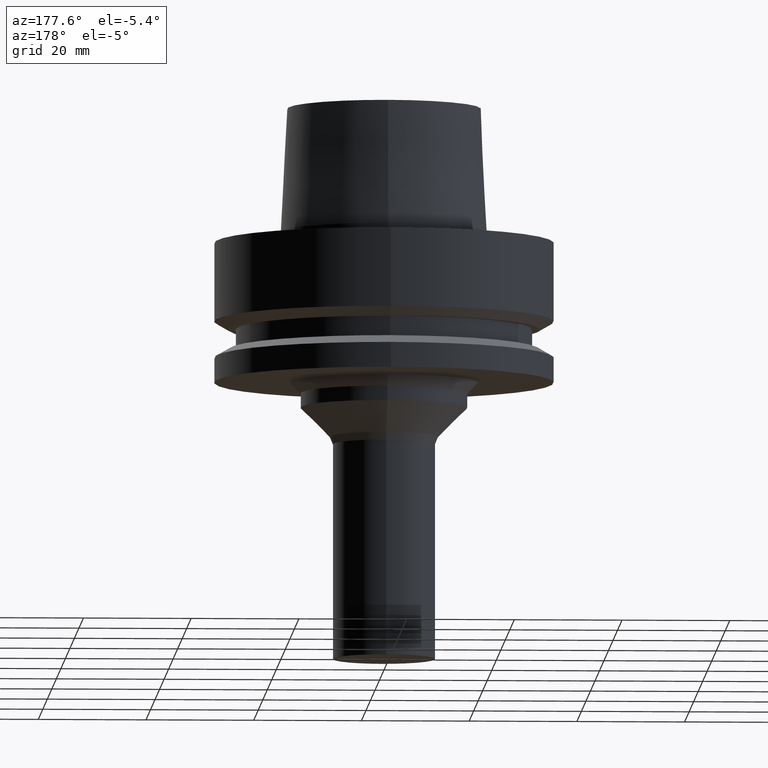
[diagram: clean part render]
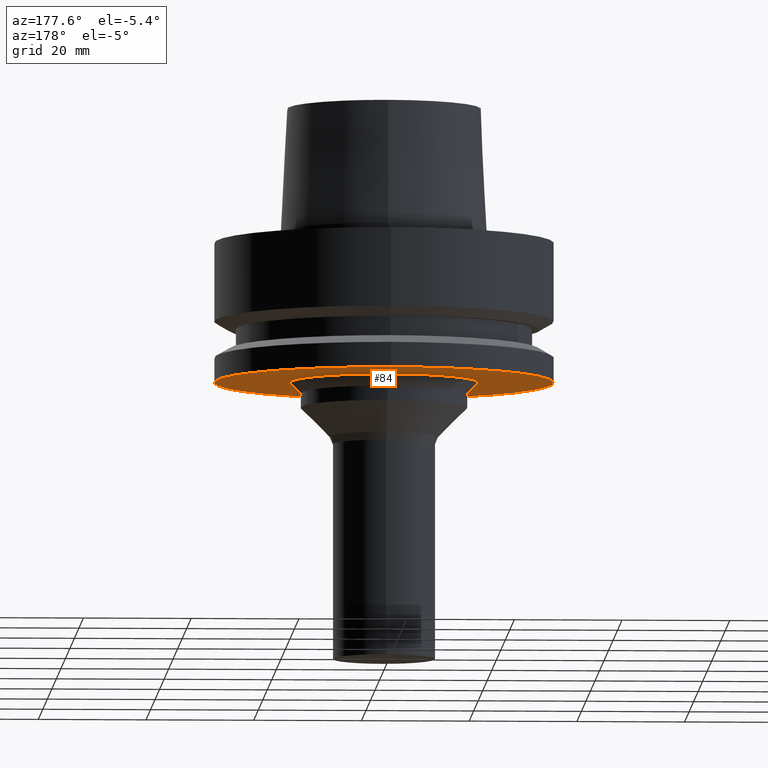
[diagram: same view with one face highlighted and labeled with its STEP entity id]
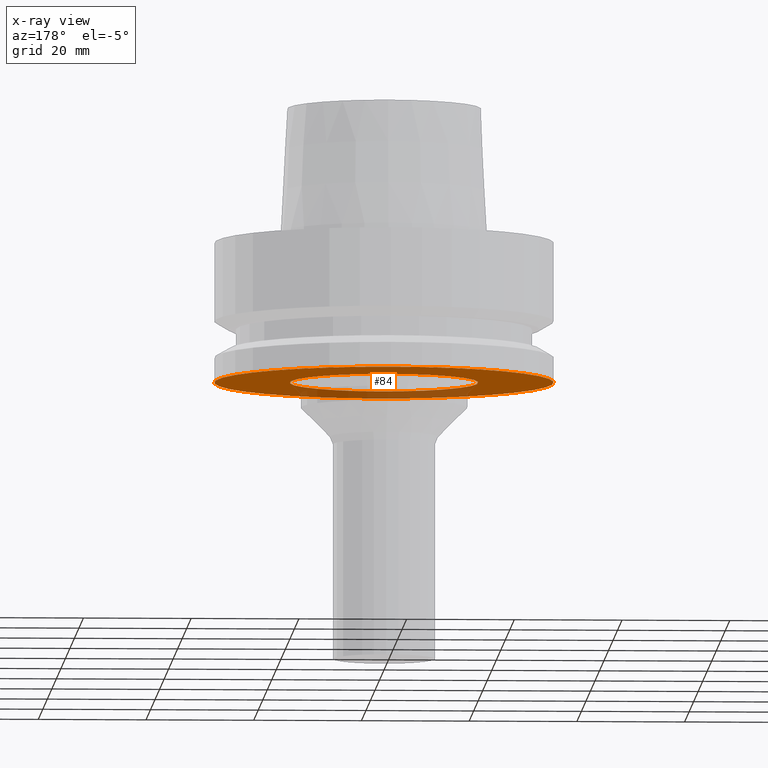
[diagram: x-ray of the same camera — body ghosted, the highlighted face saturated]
A machine part, auxiliary view. The second image highlights one B-rep face of the part: STEP entity #84.
The next image is the same camera in x-ray: the body ghosted, the highlighted face saturated — about 23% of this face is hidden behind the body in this view.
In plain terms, the highlighted planar face has unit normal (0, 0, -1).
Its self-contained STEP definition (entity closure, byte-faithful):
#84=ADVANCED_FACE('',(#121,#122),#123,.T.);
#121=FACE_BOUND('',#173,.T.);
#122=FACE_OUTER_BOUND('',#174,.T.);
#123=PLANE('',#175);
#173=EDGE_LOOP('',(#243));
#174=EDGE_LOOP('',(#244));
#175=AXIS2_PLACEMENT_3D('',#245,#246,#247);
#243=ORIENTED_EDGE('',*,*,#296,.F.);
#244=ORIENTED_EDGE('',*,*,#295,.T.);
#245=CARTESIAN_POINT('',(1.59204083889156E-015,24.5,-26.0));
#246=DIRECTION('',(6.12323399573677E-017,1.22464679914735E-016,-1.0));
#247=DIRECTION('',(-1.23259516440783E-032,1.0,1.22464679914735E-016));
#295=EDGE_CURVE('',#321,#321,#322,.T.);
#296=EDGE_CURVE('',#323,#323,#324,.T.);
#321=VERTEX_POINT('',#355);
#322=CIRCLE('',#356,31.5);
#323=VERTEX_POINT('',#357);
#324=CIRCLE('',#358,17.5);
#355=CARTESIAN_POINT('',(1.59204083889156E-015,31.5,-26.0));
#356=AXIS2_PLACEMENT_3D('',#398,#399,#400);
#357=CARTESIAN_POINT('',(1.59204083889156E-015,17.5,-26.0));
#358=AXIS2_PLACEMENT_3D('',#401,#402,#403);
#398=CARTESIAN_POINT('',(1.59204083889156E-015,3.18408167778312E-015,-26.0));
#399=DIRECTION('',(6.12323399573677E-017,1.22464679914735E-016,-1.0));
#400=DIRECTION('',(-1.23259516440783E-032,1.0,1.22464679914735E-016));
#401=CARTESIAN_POINT('',(1.59204083889156E-015,3.18408167778312E-015,-26.0));
#402=DIRECTION('',(6.12323399573677E-017,1.22464679914735E-016,-1.0));
#403=DIRECTION('',(-1.23259516440783E-032,1.0,1.22464679914735E-016));